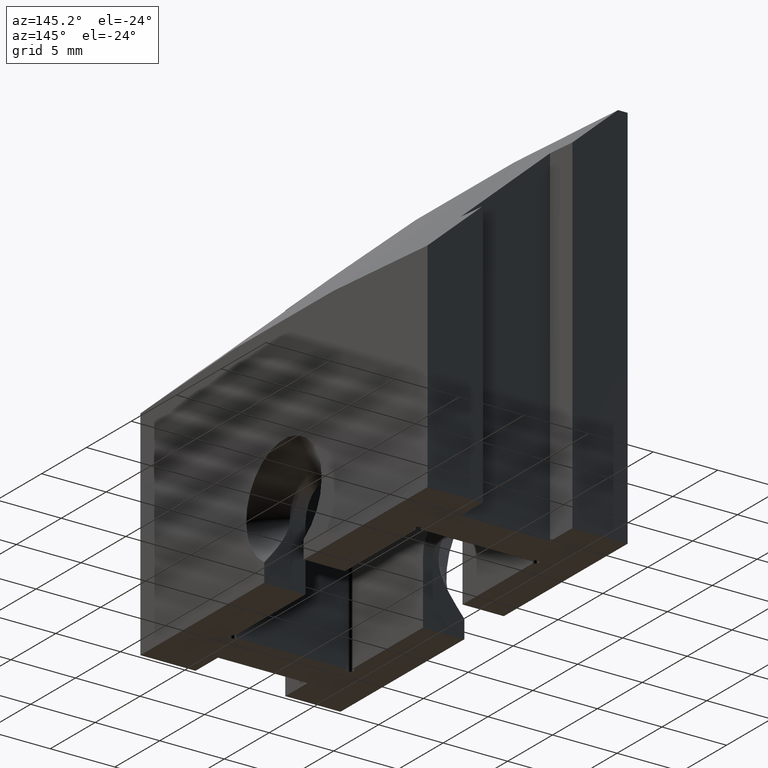
[diagram: clean part render]
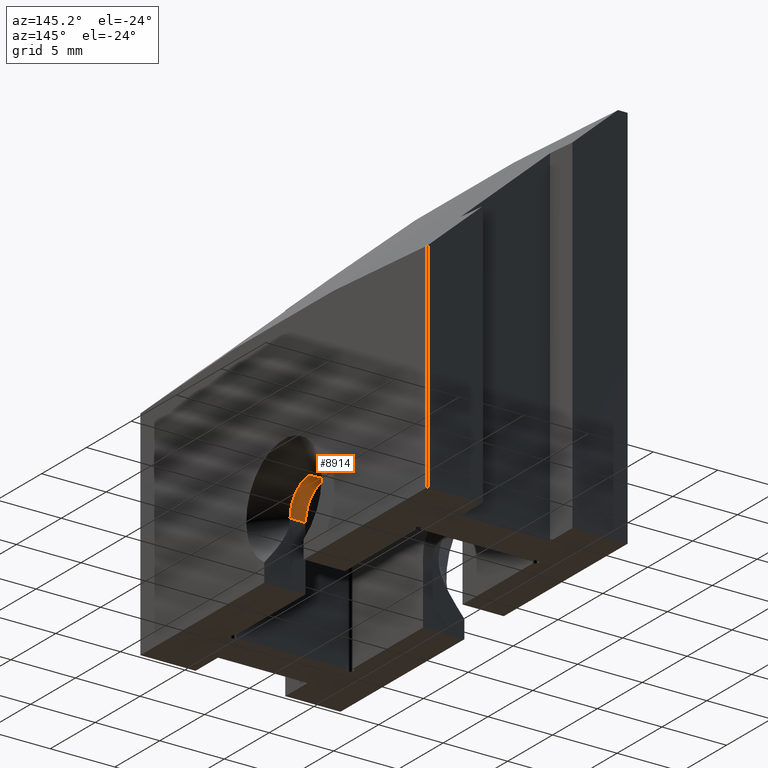
[diagram: same view with one face highlighted and labeled with its STEP entity id]
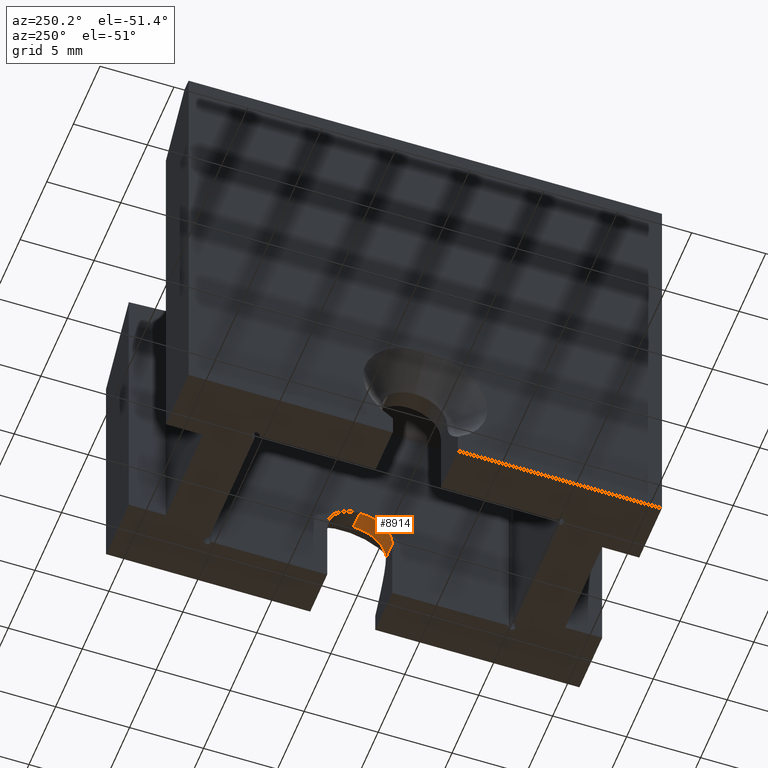
[diagram: same view with one face highlighted and labeled with its STEP entity id]
A machine part, auxiliary view. The second image highlights one B-rep face of the part: STEP entity #8914.
A second angle (auxiliary view) of the same face is appended — the face is thin or edge-on in the first view.
In plain terms, the highlighted cylindrical surface (edge-blend (fillet) strip) has radius 2.2 mm, axis along (-1, -0, -0).
Its self-contained STEP definition (entity closure, byte-faithful):
#7 = CYLINDRICAL_SURFACE ( 'NONE', #10753, 2.200000000000000622 ) ;
#67 = DIRECTION ( 'NONE',  ( 1.000000000000000000, -0.000000000000000000, -0.000000000000000000 ) ) ;
#136 = CARTESIAN_POINT ( 'NONE',  ( 4.549999999999998934, -2.200000000000000178, -10.00000000000000178 ) ) ;
#530 = CARTESIAN_POINT ( 'NONE',  ( 5.749999999999994671, 0.000000000000000000, -7.800000000000001599 ) ) ;
#666 = DIRECTION ( 'NONE',  ( 0.000000000000000000, 0.000000000000000000, 1.000000000000000000 ) ) ;
#677 = CARTESIAN_POINT ( 'NONE',  ( 5.749999999999994671, -2.200000000000000178, -10.00000000000000178 ) ) ;
#937 = FACE_OUTER_BOUND ( 'NONE', #12860, .T. ) ;
#1182 = CIRCLE ( 'NONE', #8497, 2.200000000000000622 ) ;
#1384 = ORIENTED_EDGE ( 'NONE', *, *, #4672, .T. ) ;
#2330 = LINE ( 'NONE', #7496, #9756 ) ;
#3032 = VECTOR ( 'NONE', #4048, 1000.000000000000000 ) ;
#3527 = VERTEX_POINT ( 'NONE', #530 ) ;
#3873 = CARTESIAN_POINT ( 'NONE',  ( 4.549999999999998934, 0.000000000000000000, -10.00000000000000178 ) ) ;
#4048 = DIRECTION ( 'NONE',  ( -1.000000000000000000, -0.000000000000000000, -0.000000000000000000 ) ) ;
#4152 = EDGE_CURVE ( 'NONE', #10992, #10785, #2330, .T. ) ;
#4234 = CARTESIAN_POINT ( 'NONE',  ( 5.749999999999994671, 0.000000000000000000, -10.00000000000000178 ) ) ;
#4672 = EDGE_CURVE ( 'NONE', #10785, #4955, #1182, .T. ) ;
#4897 = CIRCLE ( 'NONE', #11560, 2.200000000000000622 ) ;
#4955 = VERTEX_POINT ( 'NONE', #9712 ) ;
#5349 = CARTESIAN_POINT ( 'NONE',  ( 22.25000000000000000, 0.000000000000000000, -10.00000000000000178 ) ) ;
#5670 = DIRECTION ( 'NONE',  ( -1.000000000000000000, -0.000000000000000000, -0.000000000000000000 ) ) ;
#6439 = ORIENTED_EDGE ( 'NONE', *, *, #9284, .F. ) ;
#6735 = DIRECTION ( 'NONE',  ( -1.000000000000000000, 0.000000000000000000, 0.000000000000000000 ) ) ;
#7177 = CARTESIAN_POINT ( 'NONE',  ( 22.25000000000000000, 0.000000000000000000, -7.800000000000001599 ) ) ;
#7391 = LINE ( 'NONE', #7177, #3032 ) ;
#7496 = CARTESIAN_POINT ( 'NONE',  ( 7.750000000000000000, -2.200000000000000178, -10.00000000000000178 ) ) ;
#8159 = ORIENTED_EDGE ( 'NONE', *, *, #4152, .T. ) ;
#8475 = DIRECTION ( 'NONE',  ( 0.000000000000000000, 0.000000000000000000, 1.000000000000000000 ) ) ;
#8497 = AXIS2_PLACEMENT_3D ( 'NONE', #3873, #6735, #666 ) ;
#8914 = ADVANCED_FACE ( 'NONE', ( #937 ), #7, .F. ) ;
#9284 = EDGE_CURVE ( 'NONE', #3527, #4955, #7391, .T. ) ;
#9712 = CARTESIAN_POINT ( 'NONE',  ( 4.549999999999998934, 0.000000000000000000, -7.800000000000001599 ) ) ;
#9756 = VECTOR ( 'NONE', #5670, 1000.000000000000000 ) ;
#10538 = DIRECTION ( 'NONE',  ( -1.000000000000000000, -0.000000000000000000, -0.000000000000000000 ) ) ;
#10753 = AXIS2_PLACEMENT_3D ( 'NONE', #5349, #10538, #8475 ) ;
#10785 = VERTEX_POINT ( 'NONE', #136 ) ;
#10992 = VERTEX_POINT ( 'NONE', #677 ) ;
#11560 = AXIS2_PLACEMENT_3D ( 'NONE', #4234, #67, #12527 ) ;
#12524 = EDGE_CURVE ( 'NONE', #3527, #10992, #4897, .T. ) ;
#12527 = DIRECTION ( 'NONE',  ( 0.000000000000000000, 0.000000000000000000, 1.000000000000000000 ) ) ;
#12615 = ORIENTED_EDGE ( 'NONE', *, *, #12524, .T. ) ;
#12860 = EDGE_LOOP ( 'NONE', ( #6439, #12615, #8159, #1384 ) ) ;